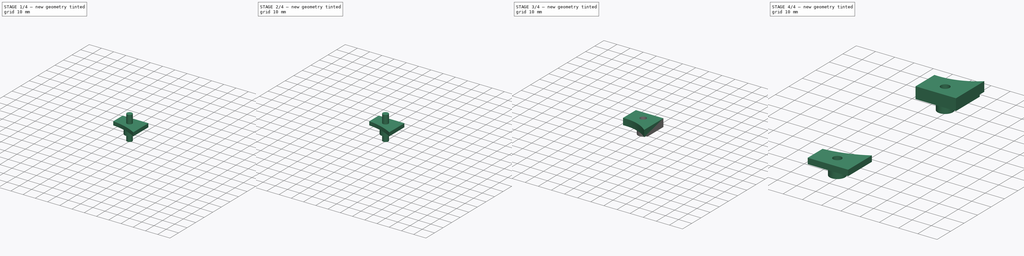
[diagram: build sequence overview — one tinted view per stage of 4, left to right]
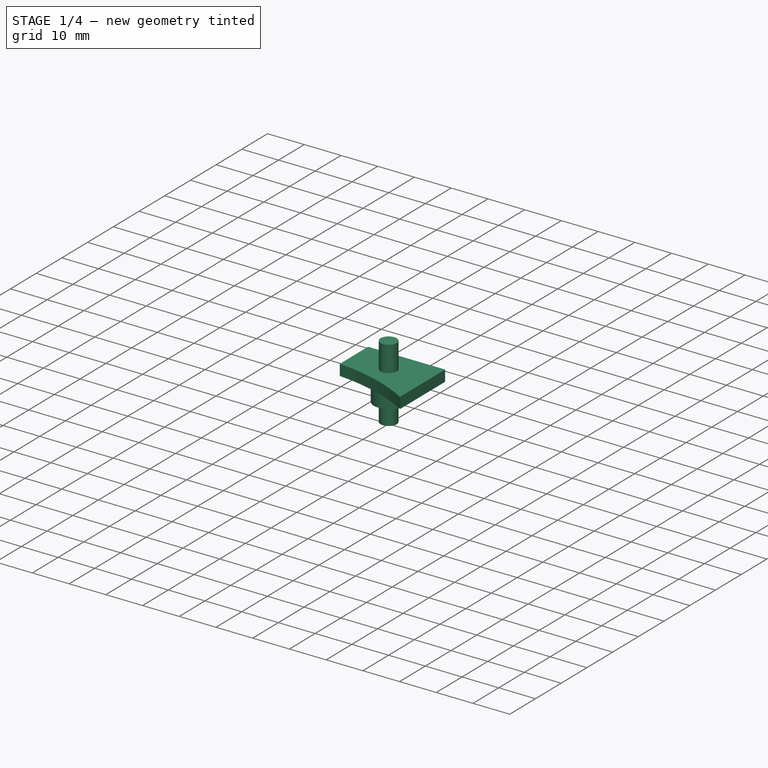
[diagram: stage 1 of 4 — iso view after this stage's code; geometry added in this stage tinted green]
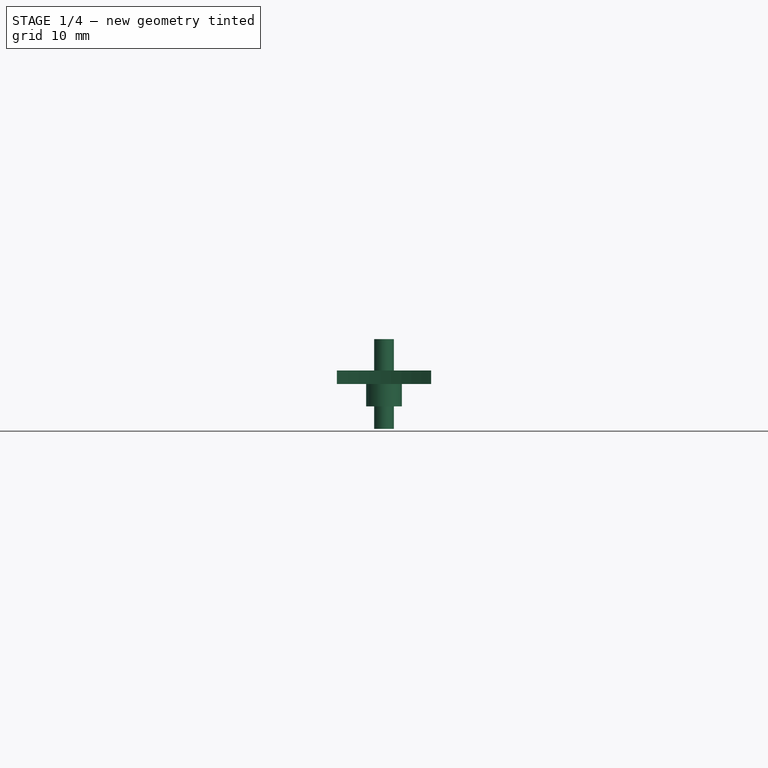
[diagram: stage 1 of 4 — front view after this stage's code; geometry added in this stage tinted green]
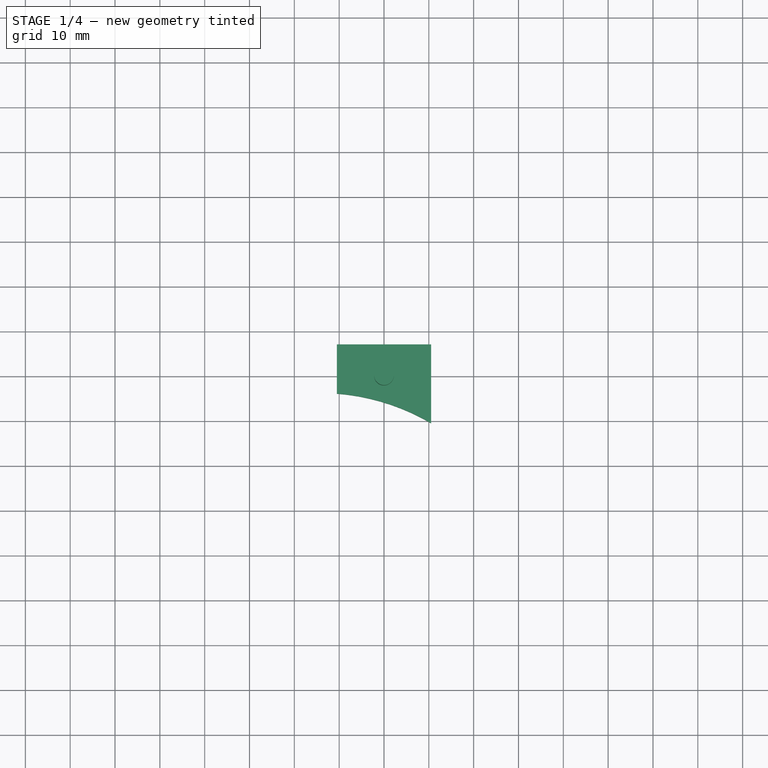
[diagram: stage 1 of 4 — top view after this stage's code; geometry added in this stage tinted green]
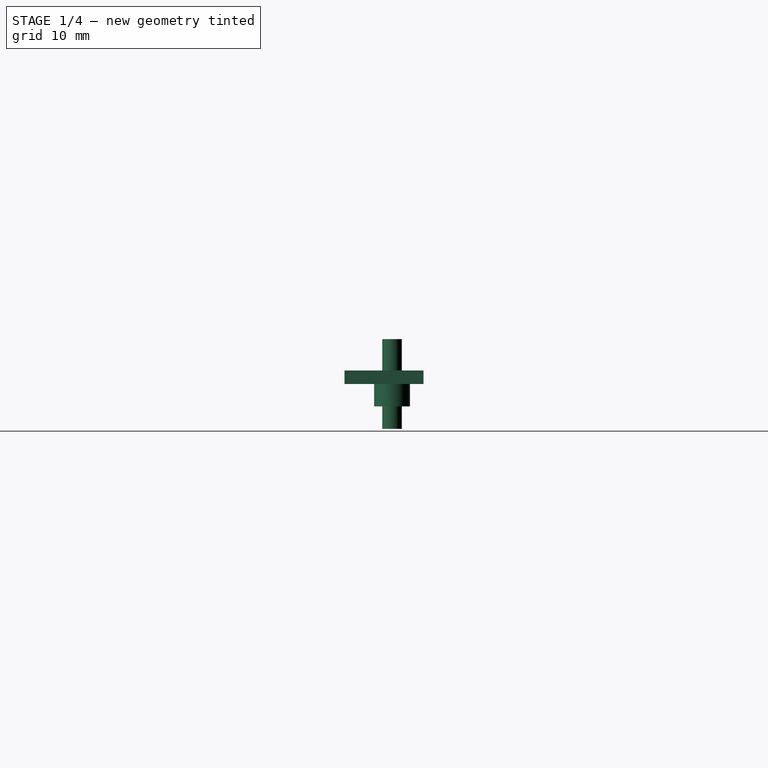
[diagram: stage 1 of 4 — right view after this stage's code; geometry added in this stage tinted green]
FCSTD DOCUMENT  (FreeCAD 0.19R)
Label: glass_bed_holder
License: All rights reserved
LicenseURL: http://en.wikipedia.org/wiki/All_rights_reserved
objects: Part::Cylinder×3, Sketcher::SketchObject×2, PartDesign::Pad×2, PartDesign::Body×2, Part::Cut×2, App::Part×2, Part::Mirroring×2, Part::MultiFuse×1, Part::Compound×1
note: 17 computed .brp shape members not serialized (recipe doc carries the construction recipe); baked Part::Feature solids carry a one-line shape summary decoded from their .brp

FEATURE [App::Part] Part  label="washer part"
  Group = -> [Cut]
  Origin = -> Origin
FEATURE [Sketcher::SketchObject] Sketch003
  FullyConstrained = true
  MapMode = 5
  Support = -> [XY_Plane003]
  sketch-geometry (5):
    g0: LineSegment StartX=-10.5 StartY=-4 StartZ=0 EndX=-10.5 EndY=7 EndZ=0
    g1: LineSegment StartX=-10.5 StartY=7 StartZ=0 EndX=10.5 EndY=7 EndZ=0
    g2: LineSegment StartX=10.5 StartY=7 StartZ=0 EndX=10.5 EndY=-10.6 EndZ=0
    g3: ArcOfCircle CenterX=-14.439 CenterY=-53.2423 CenterZ=0 NormalX=0 NormalY=0 NormalZ=1 AngleXU=0 Radius=49.3996 StartAngle=1.0416 EndAngle=1.49097
    g4: GeomPoint X=0 Y=-6 Z=0
  constraints (15):
    c: Vertical(g0)
    c: Coincident(g1,g0)
    c: Coincident(g2,g1)
    c: Vertical(g2)
    c: Coincident(g3,g0)
    c: Coincident(g3,g2)
    c: DistanceX(g1,g1) = 21
    c: DistanceY(g2,g2) = 17.6
    c: DistanceY(g0,g0) = 11
    c: Symmetric(g1,g0,g-2)
    c: DistanceY(g-1,g1) = 7
    c: DistanceY(g0,g-1) = 4
    c: PointOnObject(g4,g3)
    c: PointOnObject(g4,g-2)
    c: DistanceY(g4,g-1) = 6
FEATURE [PartDesign::Pad] Pad002
  Direction = (1,1,1)
  Length = 3
  Length2 = 100
  Profile = -> Sketch003
  Type = 0
FEATURE [PartDesign::Body] Body002
  Group = -> [Sketch003,Pad002]
  Origin = -> Origin003
  Tip = -> Pad002
FEATURE [Part::Cylinder] Cylinder002  label="hole001"
  Angle = 360
  AttacherType = Attacher::AttachEngine3D
  Height = 20
  Placement = pos=(0,0,-10) rot=(0,0,1;0rad)
  Radius = 2.2
  expr: .Placement.Base.z = -Height / 2
FEATURE [Part::Cylinder] Cylinder003  label="hole border001"
  Angle = 360
  AttacherType = Attacher::AttachEngine3D
  Height = 5
  Placement = pos=(0,0,-5) rot=(0,0,1;0rad)
  Radius = 4
  expr: .Placement.Base.z = -Height
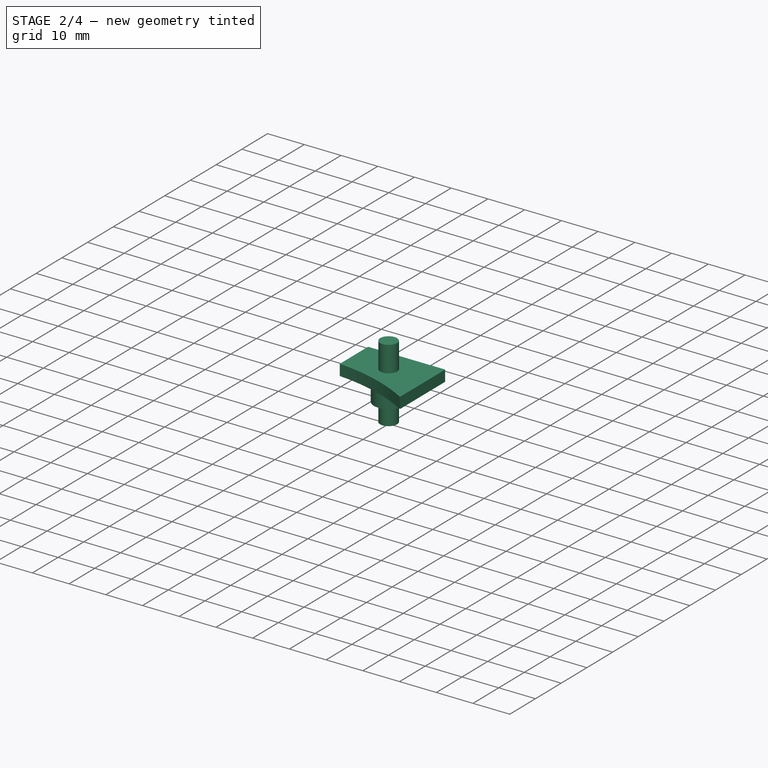
[diagram: stage 2 of 4 — iso view after this stage's code; geometry added in this stage tinted green]
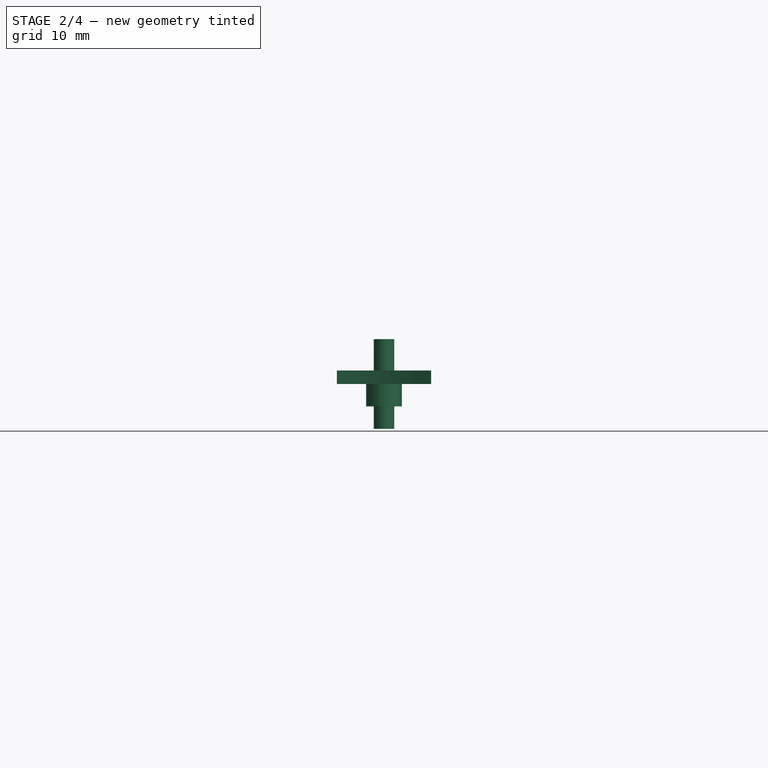
[diagram: stage 2 of 4 — front view after this stage's code; geometry added in this stage tinted green]
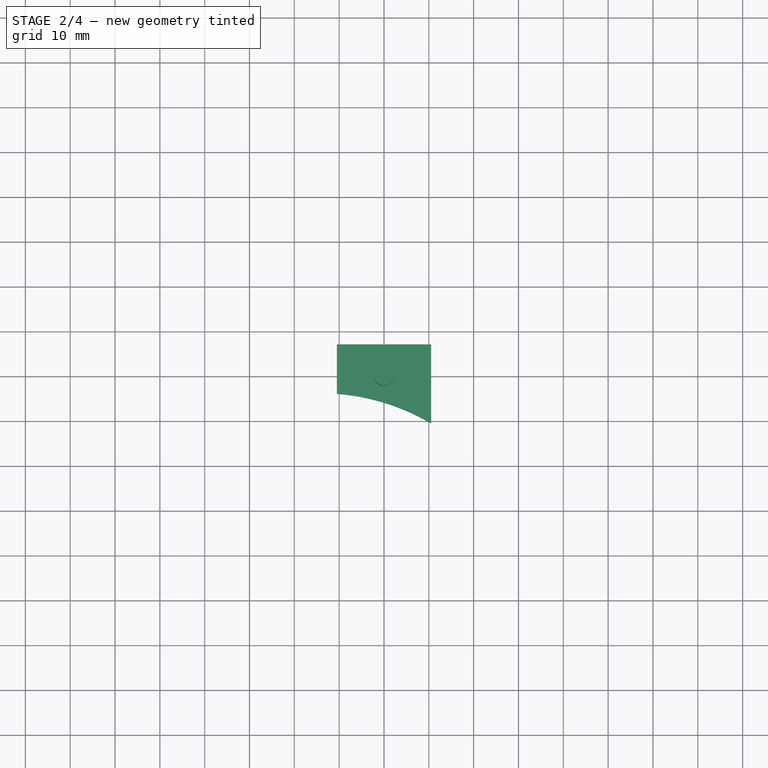
[diagram: stage 2 of 4 — top view after this stage's code; geometry added in this stage tinted green]
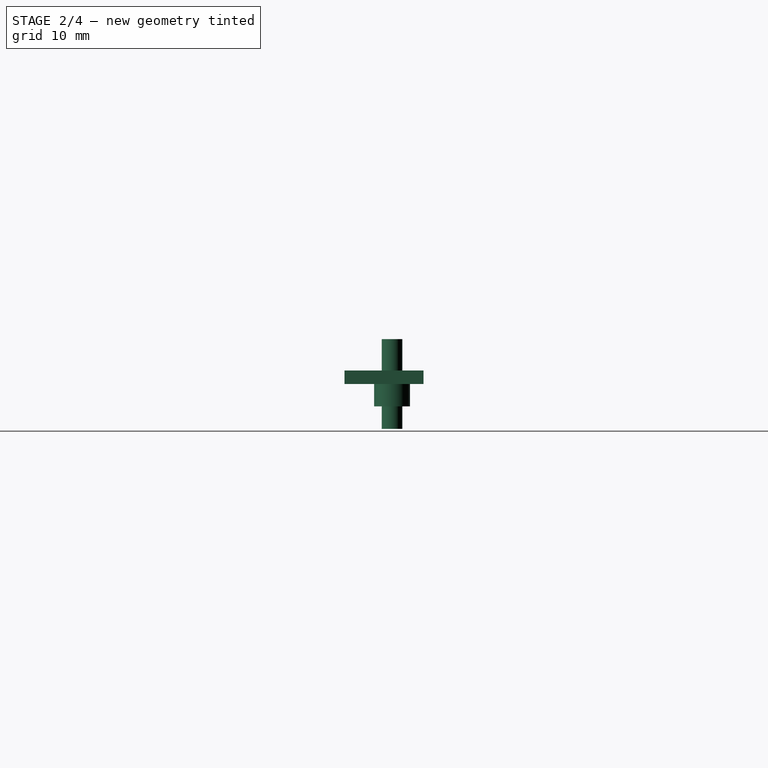
[diagram: stage 2 of 4 — right view after this stage's code; geometry added in this stage tinted green]
FEATURE [PartDesign::Body] Body001
  Group = -> [Sketch002,Pad001]
  Origin = -> Origin002
  Tip = -> Pad001
FEATURE [Part::Cylinder] Cylinder  label="hole"
  Angle = 360
  AttacherType = Attacher::AttachEngine3D
  Height = 20
  Placement = pos=(0,0,-10) rot=(0,0,1;0rad)
  Radius = 2.3
  expr: .Placement.Base.z = -Height / 2
FEATURE [Part::MultiFuse] Fusion001
  Shapes = -> [Cylinder003,Body002]
FEATURE [Part::Cut] Cut001  label="pad cut"
  Base = -> Fusion001
  Tool = -> Cylinder002
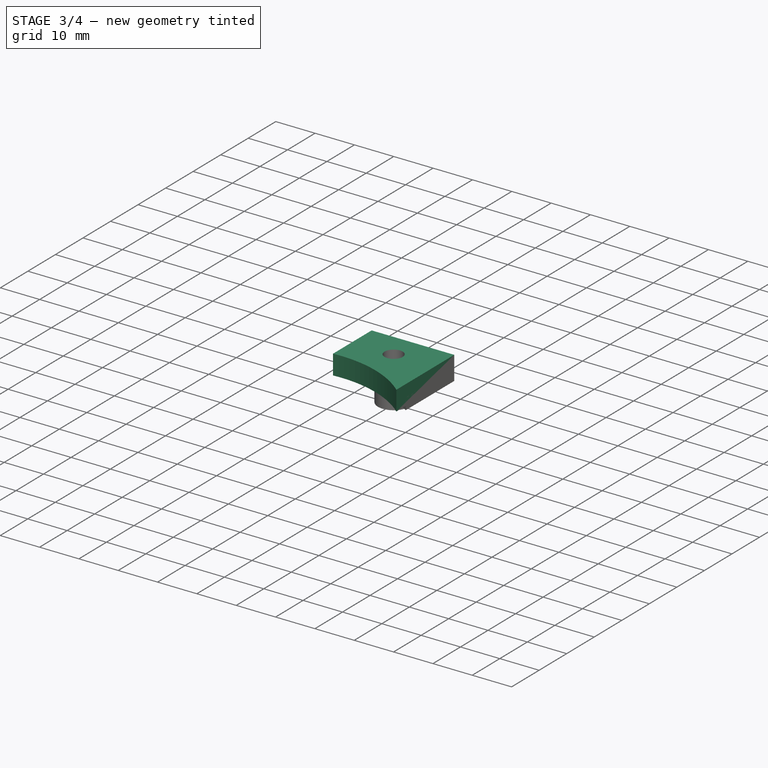
[diagram: stage 3 of 4 — iso view after this stage's code; geometry added in this stage tinted green]
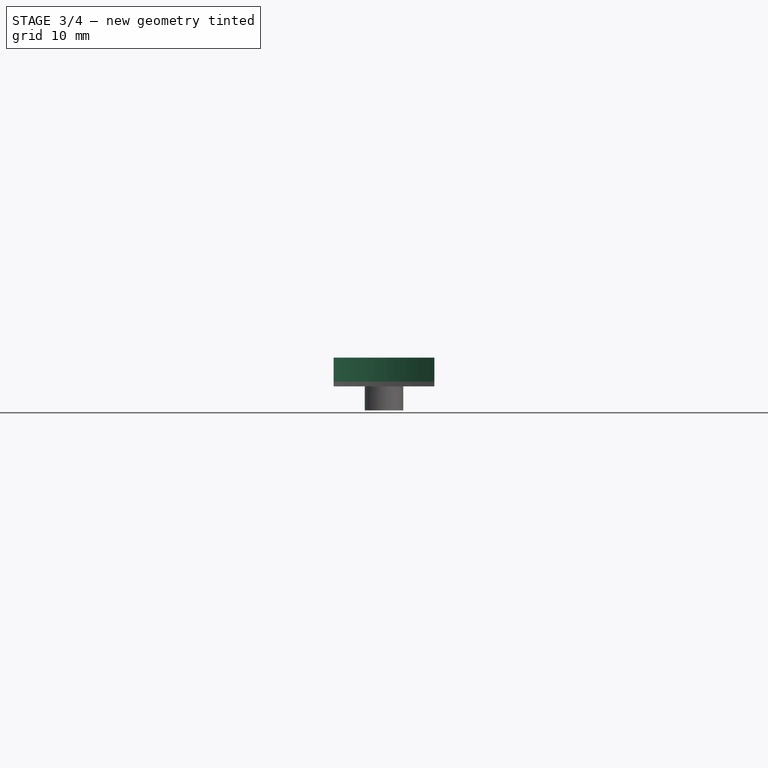
[diagram: stage 3 of 4 — front view after this stage's code; geometry added in this stage tinted green]
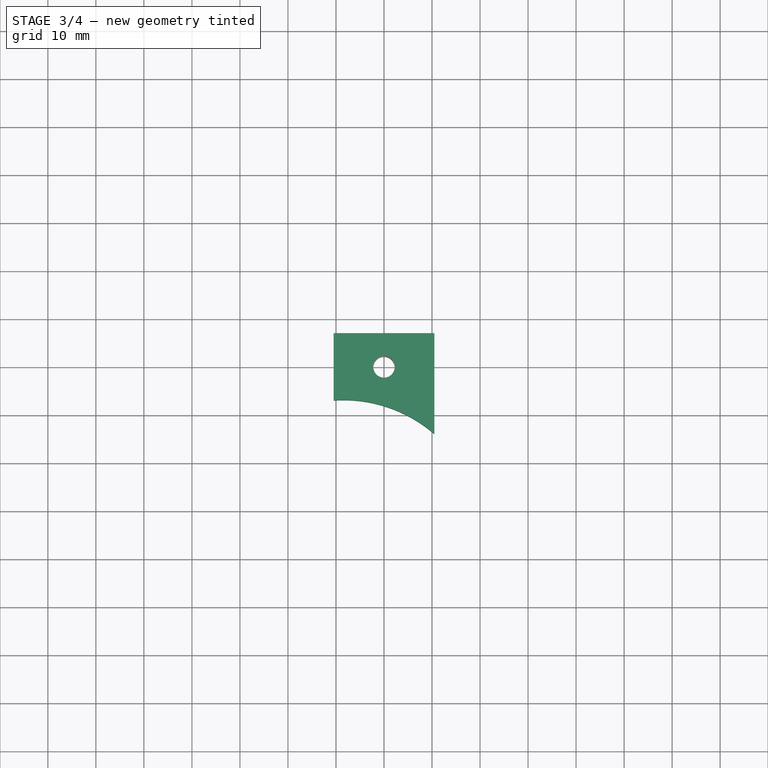
[diagram: stage 3 of 4 — top view after this stage's code; geometry added in this stage tinted green]
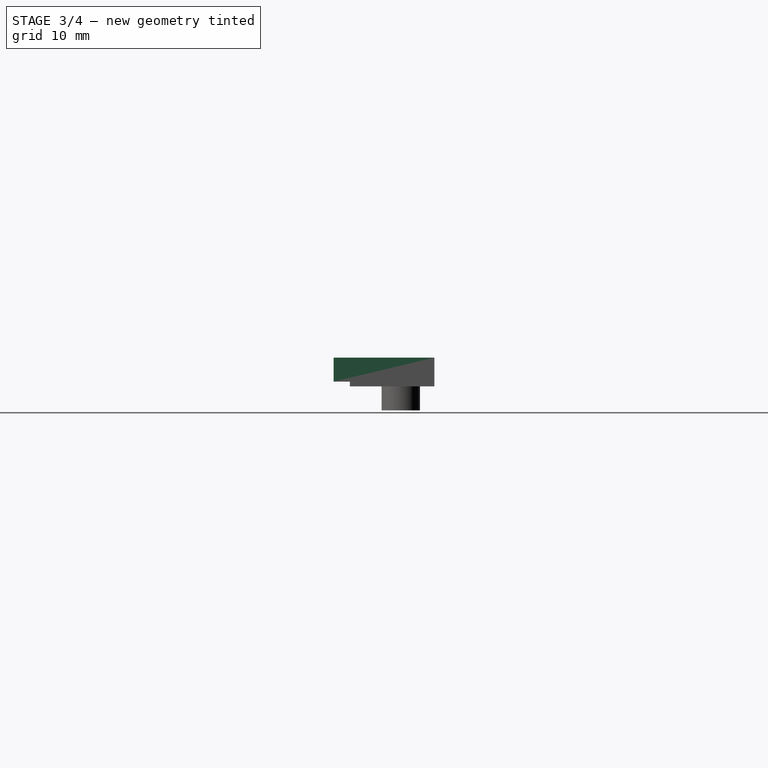
[diagram: stage 3 of 4 — right view after this stage's code; geometry added in this stage tinted green]
FEATURE [Sketcher::SketchObject] Sketch002
  FullyConstrained = true
  MapMode = 5
  Support = -> [XY_Plane002]
  sketch-geometry (5):
    g0: LineSegment StartX=-10.5 StartY=-7 StartZ=0 EndX=-10.5 EndY=7 EndZ=0
    g1: LineSegment StartX=-10.5 StartY=7 StartZ=0 EndX=10.5 EndY=7 EndZ=0
    g2: LineSegment StartX=10.5 StartY=7 StartZ=0 EndX=10.5 EndY=-14 EndZ=0
    g3: ArcOfCircle CenterX=-8.49348 CenterY=-35.9804 CenterZ=0 NormalX=0 NormalY=0 NormalZ=1 AngleXU=0 Radius=29.0498 StartAngle=0.858168 EndAngle=1.63992
    g4: GeomPoint X=0 Y=-8.2 Z=0
  constraints (15):
    c: Vertical(g0)
    c: Coincident(g1,g0)
    c: Coincident(g2,g1)
    c: Vertical(g2)
    c: Coincident(g3,g0)
    c: DistanceX(g1,g1) = 21
    c: DistanceY(g2,g2) = 21
    c: DistanceY(g0,g0) = 14
    c: Symmetric(g1,g0,g-2)
    c: DistanceY(g-1,g1) = 7
    c: DistanceY(g0,g-1) = 7
    c: PointOnObject(g4,g3)
    c: PointOnObject(g4,g-2)
    c: DistanceY(g4,g-1) = 8.2
    c: Coincident(g2,g3)
FEATURE [PartDesign::Pad] Pad001
  Direction = (1,1,1)
  Length = 5
  Length2 = 100
  Profile = -> Sketch002
  Type = 0
FEATURE [Part::Cut] Cut  label="washer cut"
  Base = -> Body001
  Placement = pos=(0,0,1) rot=(0,0,1;0rad)
  Tool = -> Cylinder
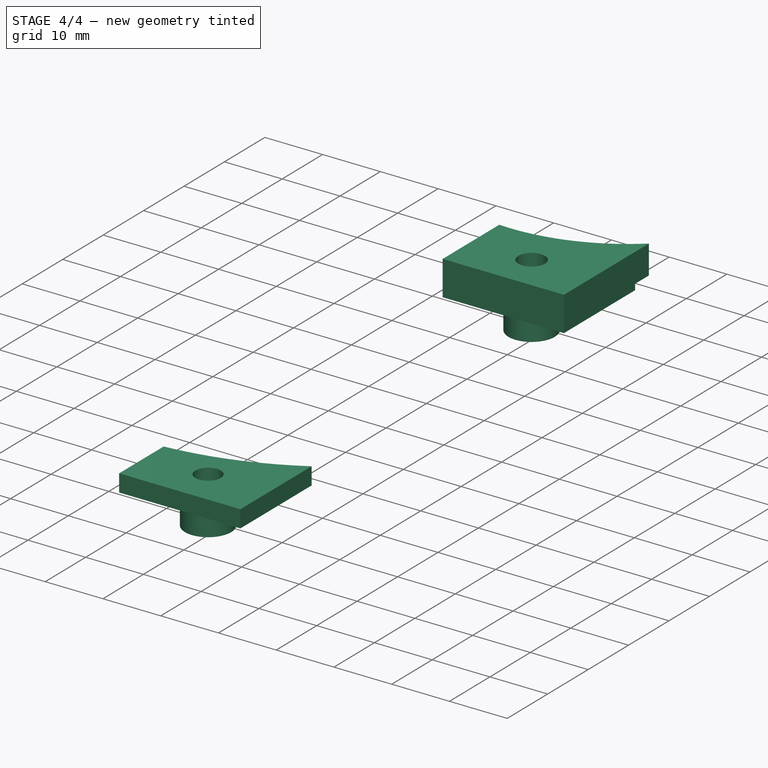
[diagram: stage 4 of 4 — iso view after this stage's code; geometry added in this stage tinted green]
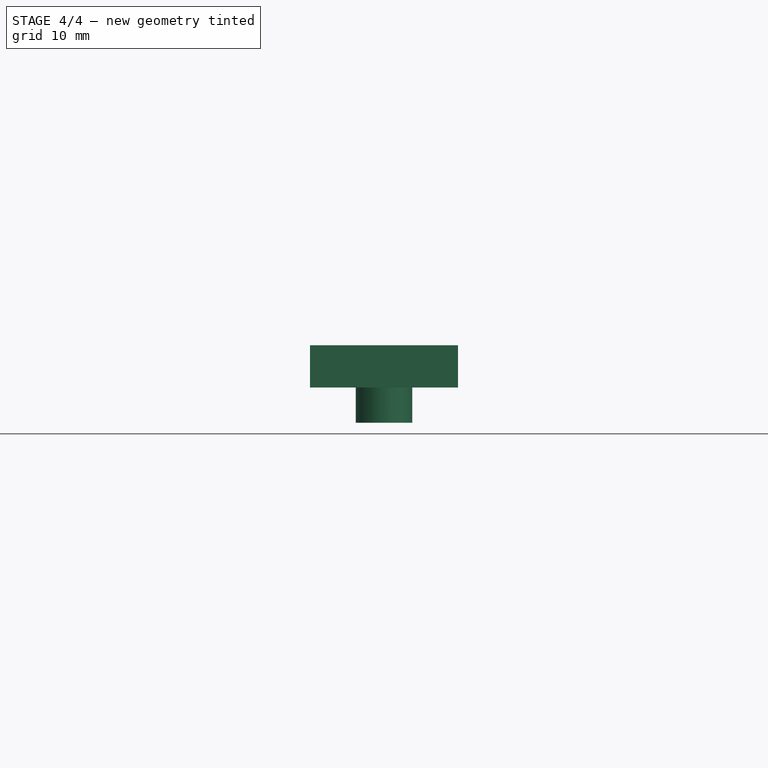
[diagram: stage 4 of 4 — front view after this stage's code; geometry added in this stage tinted green]
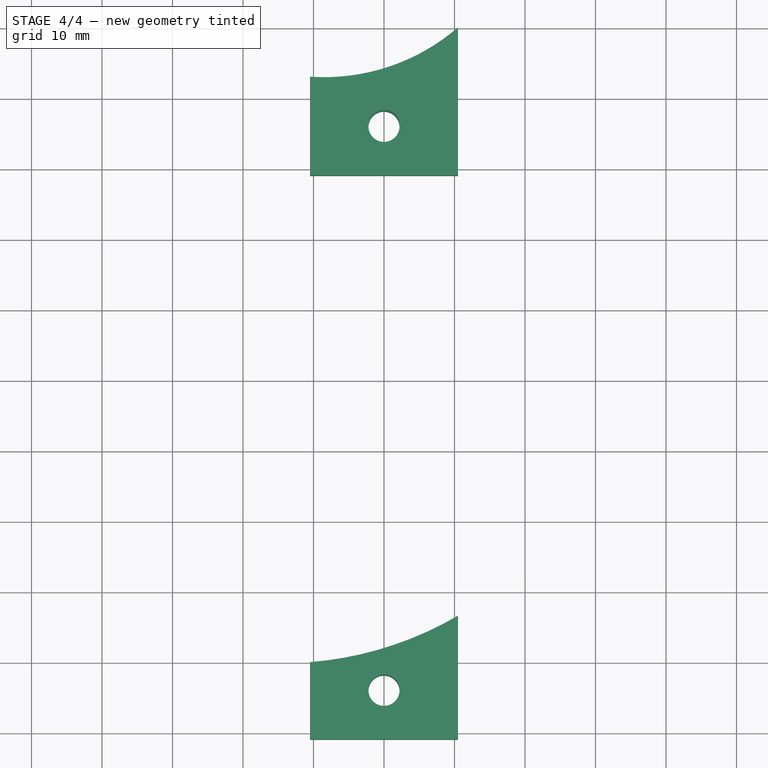
[diagram: stage 4 of 4 — top view after this stage's code; geometry added in this stage tinted green]
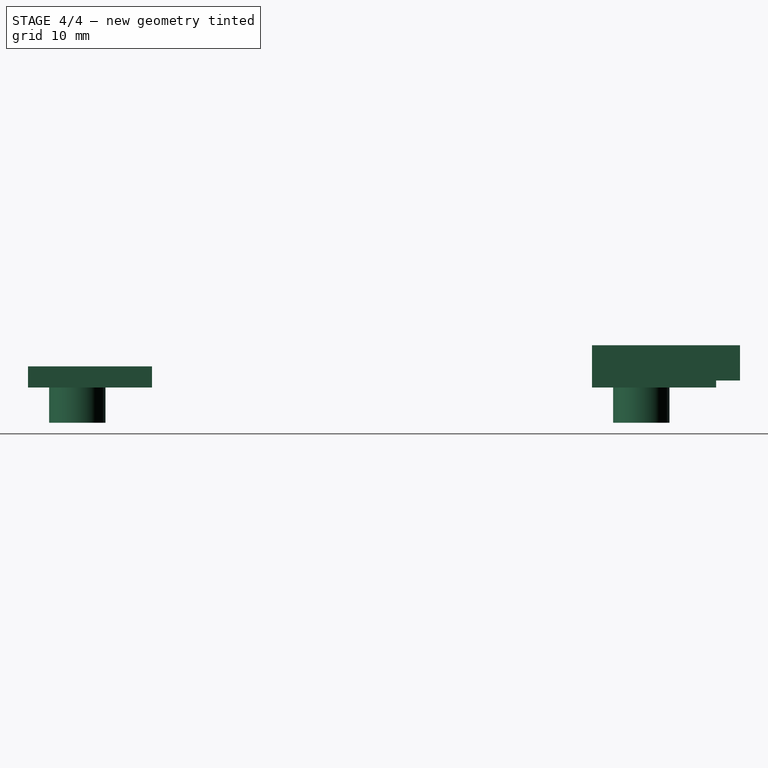
[diagram: stage 4 of 4 — right view after this stage's code; geometry added in this stage tinted green]
FEATURE [Part::Mirroring] Part__Mirroring  label="pad cut mirror"
  Base = (0,-17,0)
  Normal = (0,1,0)
  Source = -> Cut001
FEATURE [App::Part] Part001  label="pad part"
  Group = -> [Cut001]
  Origin = -> Origin004
FEATURE [Part::Compound] Compound
  Links = -> [Cut,Cut001]
FEATURE [Part::Mirroring] Part__Mirroring001  label="Compound (Mirror #2)"
  Base = (0,0,0)
  Normal = (0,1,0)
  Placement = pos=(0,46,0) rot=(0,0,1;0rad)
  Source = -> Compound
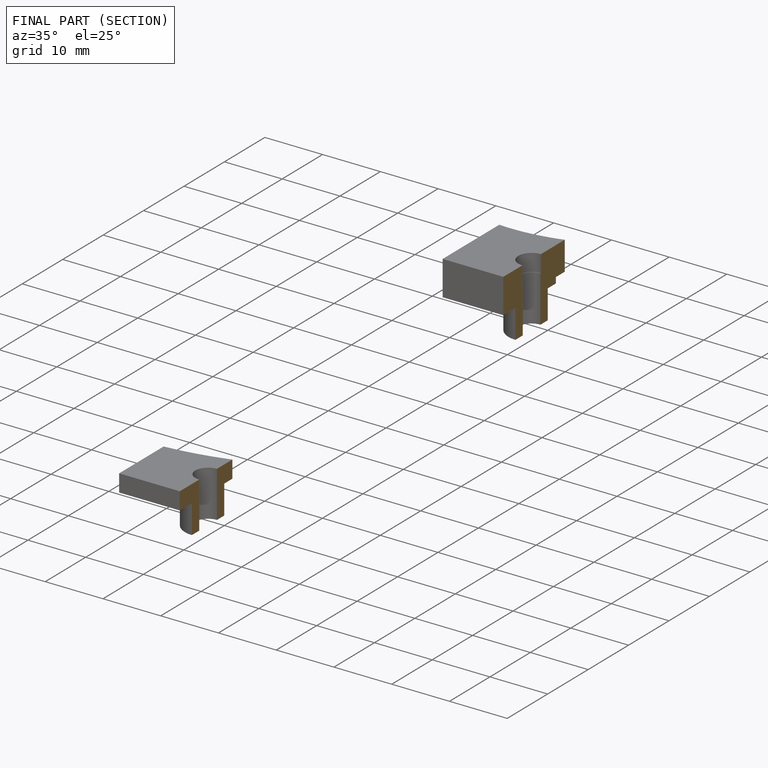
[diagram: finished part — half-section view (interior)]
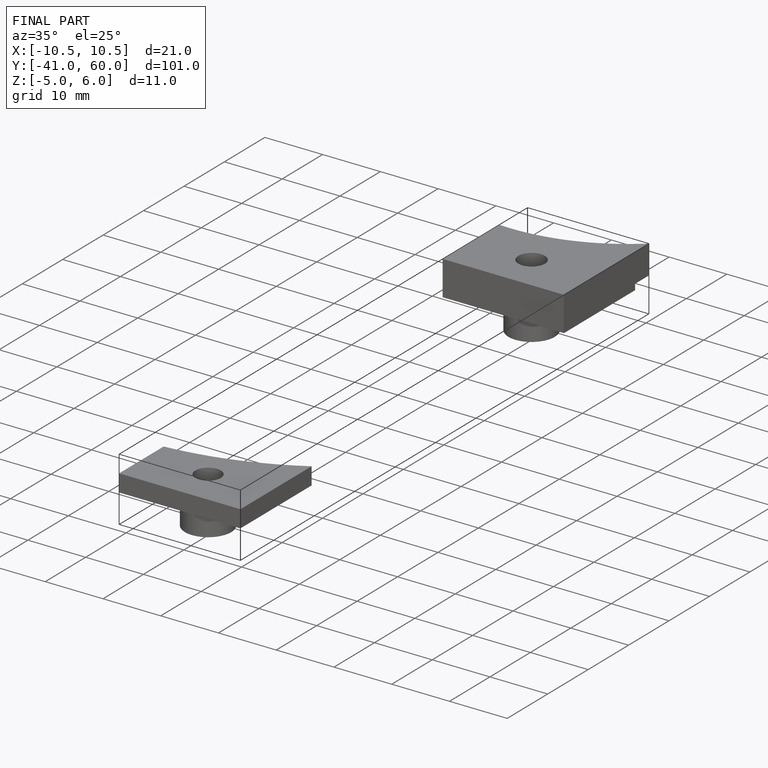
[diagram: finished part — iso view with bounding-box wireframe]
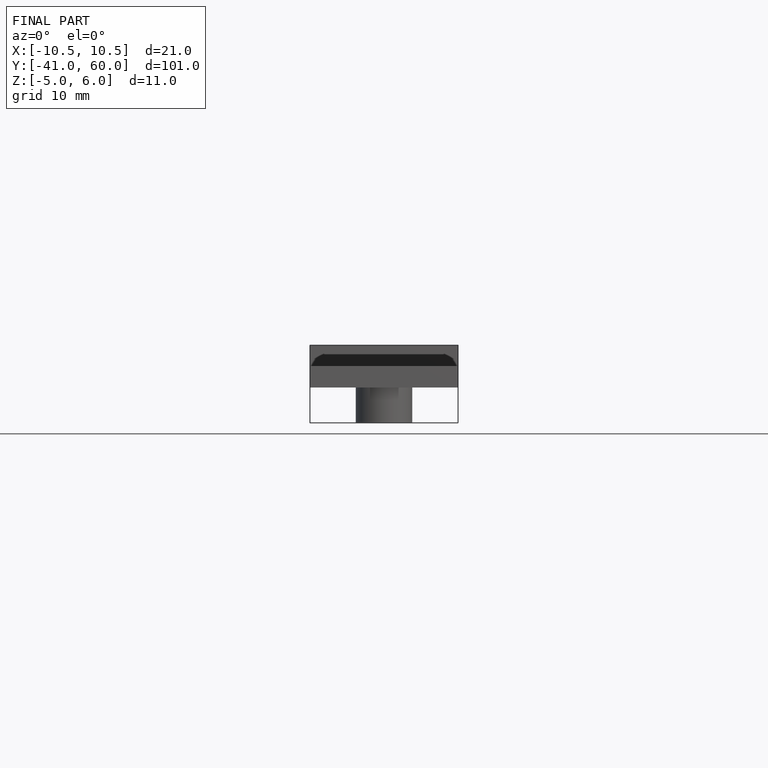
[diagram: finished part — front view with bounding-box wireframe]
